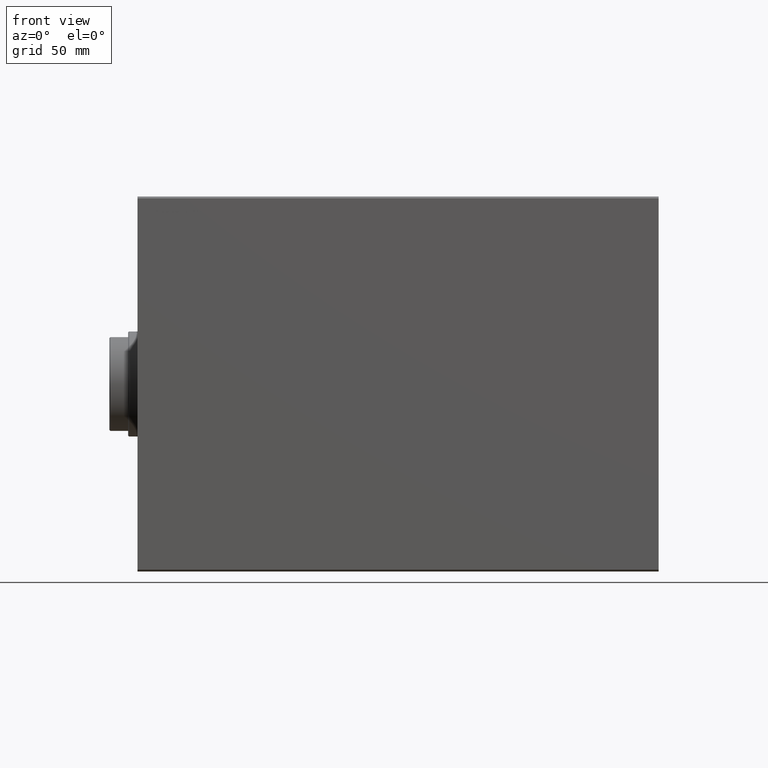
[diagram: clean part render]
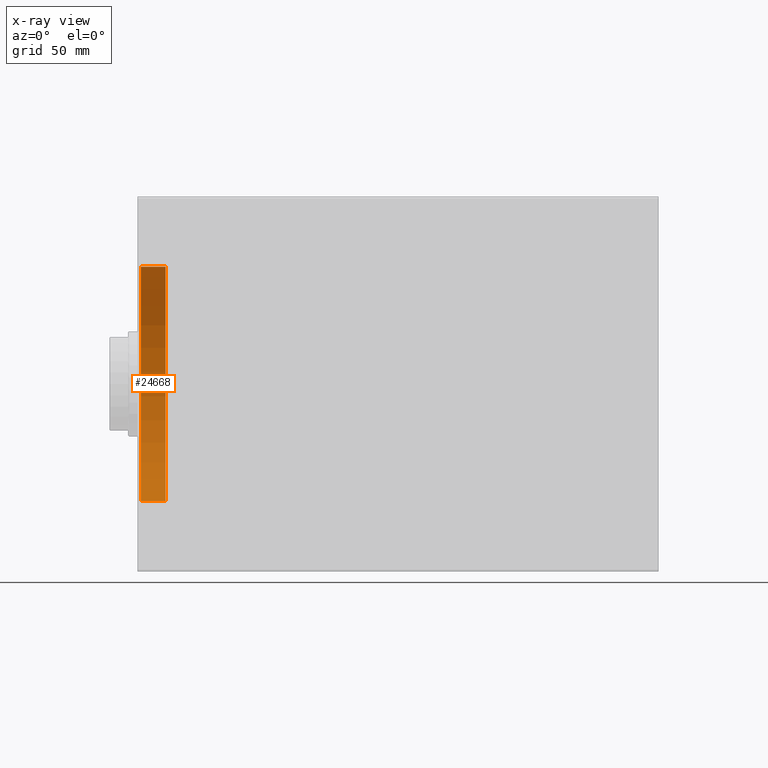
[diagram: x-ray — body ghosted, one internal face saturated and labeled with its STEP entity id]
A machine part, front view, then the same camera in x-ray: the body is ghosted and one INTERNAL B-rep face — a face not visible from any outside direction — is saturated and labeled: STEP entity #24668.
In plain terms, the highlighted cylindrical surface (partial cylindrical patch) has radius 62.5 mm, axis along (1, -0, -0).
Its self-contained STEP definition (entity closure, byte-faithful):
#470 = VERTEX_POINT ( 'NONE', #14066 ) ;
#1948 = DIRECTION ( 'NONE',  ( -0.000000000000000000, -0.000000000000000000, -1.000000000000000000 ) ) ;
#2051 = DIRECTION ( 'NONE',  ( 0.000000000000000000, 0.000000000000000000, 1.000000000000000000 ) ) ;
#3903 = DIRECTION ( 'NONE',  ( 0.000000000000000000, 0.000000000000000000, 1.000000000000000000 ) ) ;
#4720 = EDGE_CURVE ( 'NONE', #470, #24028, #14593, .T. ) ;
#4832 = DIRECTION ( 'NONE',  ( -0.000000000000000000, -0.000000000000000000, -1.000000000000000000 ) ) ;
#6477 = ORIENTED_EDGE ( 'NONE', *, *, #36350, .T. ) ;
#8799 = EDGE_CURVE ( 'NONE', #39274, #10098, #20553, .T. ) ;
#9569 = CARTESIAN_POINT ( 'NONE',  ( 62.50000000000000000, 7.654042494670957804E-15, 13.19999999999999929 ) ) ;
#10098 = VERTEX_POINT ( 'NONE', #20278 ) ;
#10853 = EDGE_LOOP ( 'NONE', ( #17287, #6477, #33149, #13694 ) ) ;
#11241 = CARTESIAN_POINT ( 'NONE',  ( 62.50000000000000000, 7.654042494670957804E-15, 13.19999999999999929 ) ) ;
#13694 = ORIENTED_EDGE ( 'NONE', *, *, #34199, .F. ) ;
#14066 = CARTESIAN_POINT ( 'NONE',  ( 62.50000000000000000, 7.654042494670957804E-15, 0.000000000000000000 ) ) ;
#14593 = CIRCLE ( 'NONE', #18267, 62.50000000000000000 ) ;
#15892 = DIRECTION ( 'NONE',  ( -1.000000000000000000, 0.000000000000000000, 0.000000000000000000 ) ) ;
#17287 = ORIENTED_EDGE ( 'NONE', *, *, #8799, .F. ) ;
#18213 = CARTESIAN_POINT ( 'NONE',  ( -62.50000000000000000, 0.000000000000000000, 0.000000000000000000 ) ) ;
#18267 = AXIS2_PLACEMENT_3D ( 'NONE', #26958, #2051, #33567 ) ;
#20278 = CARTESIAN_POINT ( 'NONE',  ( -62.50000000000000000, 0.000000000000000000, 13.19999999999999929 ) ) ;
#20335 = DIRECTION ( 'NONE',  ( -0.000000000000000000, -0.000000000000000000, -1.000000000000000000 ) ) ;
#20553 = CIRCLE ( 'NONE', #29258, 62.50000000000000000 ) ;
#24028 = VERTEX_POINT ( 'NONE', #18213 ) ;
#24668 = ADVANCED_FACE ( 'NONE', ( #36876 ), #37106, .T. ) ;
#24910 = DIRECTION ( 'NONE',  ( 1.000000000000000000, 0.000000000000000000, 0.000000000000000000 ) ) ;
#25381 = VECTOR ( 'NONE', #4832, 1000.000000000000000 ) ;
#26853 = CARTESIAN_POINT ( 'NONE',  ( 0.000000000000000000, 0.000000000000000000, 13.19999999999999929 ) ) ;
#26958 = CARTESIAN_POINT ( 'NONE',  ( 0.000000000000000000, 0.000000000000000000, 0.000000000000000000 ) ) ;
#29258 = AXIS2_PLACEMENT_3D ( 'NONE', #42272, #3903, #24910 ) ;
#32509 = AXIS2_PLACEMENT_3D ( 'NONE', #26853, #1948, #15892 ) ;
#33149 = ORIENTED_EDGE ( 'NONE', *, *, #4720, .T. ) ;
#33567 = DIRECTION ( 'NONE',  ( 1.000000000000000000, 0.000000000000000000, 0.000000000000000000 ) ) ;
#34199 = EDGE_CURVE ( 'NONE', #10098, #24028, #41099, .T. ) ;
#36350 = EDGE_CURVE ( 'NONE', #39274, #470, #39321, .T. ) ;
#36876 = FACE_OUTER_BOUND ( 'NONE', #10853, .T. ) ;
#37106 = CYLINDRICAL_SURFACE ( 'NONE', #32509, 62.50000000000000000 ) ;
#37209 = CARTESIAN_POINT ( 'NONE',  ( -62.50000000000000000, 0.000000000000000000, 13.19999999999999929 ) ) ;
#39274 = VERTEX_POINT ( 'NONE', #9569 ) ;
#39321 = LINE ( 'NONE', #11241, #25381 ) ;
#39934 = VECTOR ( 'NONE', #20335, 1000.000000000000000 ) ;
#41099 = LINE ( 'NONE', #37209, #39934 ) ;
#42272 = CARTESIAN_POINT ( 'NONE',  ( 0.000000000000000000, 0.000000000000000000, 13.19999999999999929 ) ) ;